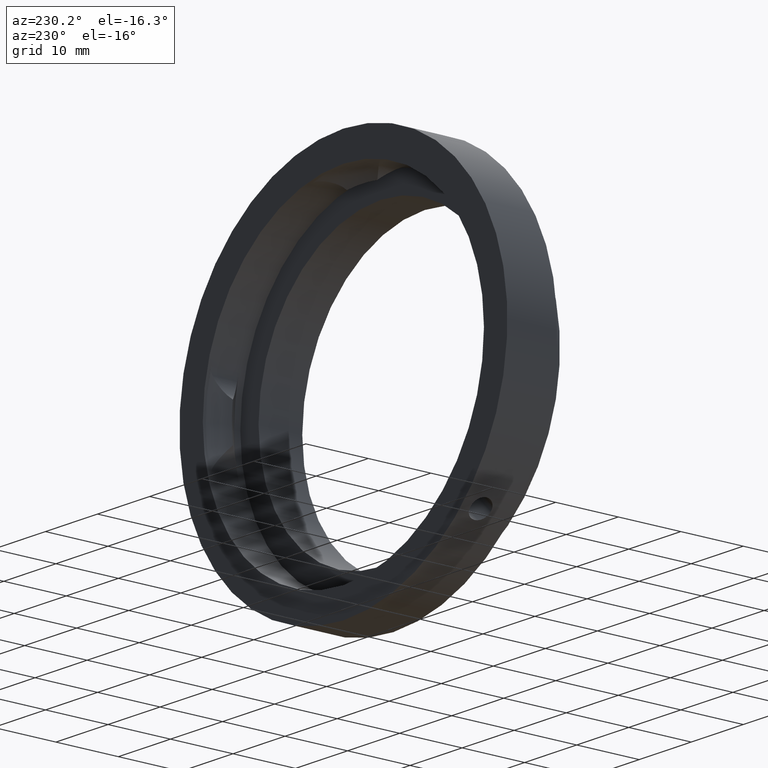
[diagram: clean part render]
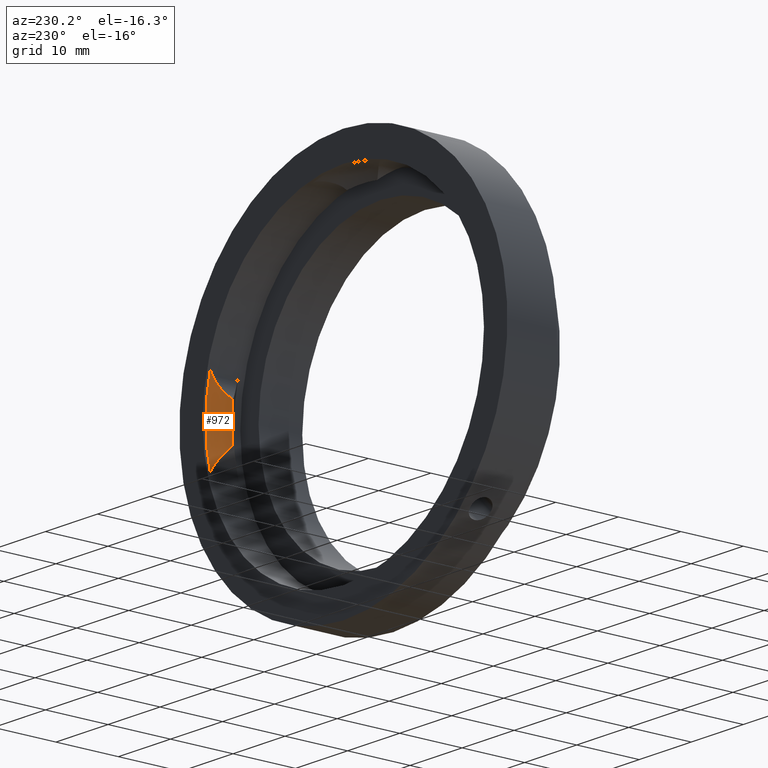
[diagram: same view with one face highlighted and labeled with its STEP entity id]
A machine part, auxiliary view. The second image highlights one B-rep face of the part: STEP entity #972.
In plain terms, the highlighted toroidal blend (fillet) surface has major radius 23.1376 mm and minor (blend) radius 4 mm.
Its self-contained STEP definition (entity closure, byte-faithful):
#44 = CARTESIAN_POINT ( 'NONE',  ( 26.07811685609203400, 3.496721311475398800, -6.995128393389825000 ) ) ;
#72 = DIRECTION ( 'NONE',  ( -0.0000000000000000000, 1.000000000000000000, -0.0000000000000000000 ) ) ;
#86 = CARTESIAN_POINT ( 'NONE',  ( 25.67428312446258300, 1.712306965547122400, 3.942588917903888700 ) ) ;
#91 = CARTESIAN_POINT ( 'NONE',  ( 26.13019098067392000, 3.482070185147443400, -6.783403477527127900 ) ) ;
#154 = CARTESIAN_POINT ( 'NONE',  ( 24.82768068771672200, 0.9967213114754001100, -2.930234063821264700 ) ) ;
#165 = DIRECTION ( 'NONE',  ( 0.0000000000000000000, 0.0000000000000000000, 1.000000000000000000 ) ) ;
#192 = AXIS2_PLACEMENT_3D ( 'NONE', #197, #493, #851 ) ;
#195 = ORIENTED_EDGE ( 'NONE', *, *, #595, .T. ) ;
#197 = CARTESIAN_POINT ( 'NONE',  ( 0.0000000000000000000, 0.9967213114754001100, 0.0000000000000000000 ) ) ;
#215 = TOROIDAL_SURFACE ( 'NONE', #744, 23.13755391998808300, 3.999999999999998200 ) ;
#224 = VERTEX_POINT ( 'NONE', #44 ) ;
#248 = CARTESIAN_POINT ( 'NONE',  ( 25.76272030198456200, 1.830174454562538200, 4.103152441285359900 ) ) ;
#252 = CARTESIAN_POINT ( 'NONE',  ( 26.20493346727846200, 2.926505991418855100, 5.624942459428278400 ) ) ;
#282 = CARTESIAN_POINT ( 'NONE',  ( 0.0000000000000000000, 4.536678175484936100, 0.0000000000000000000 ) ) ;
#283 = CARTESIAN_POINT ( 'NONE',  ( 26.12462800761268900, 2.557957266638823100, -5.096502573787323500 ) ) ;
#341 = CARTESIAN_POINT ( 'NONE',  ( 26.17205975867806300, 3.436686498698581000, 6.574057318472578800 ) ) ;
#349 = CARTESIAN_POINT ( 'NONE',  ( 26.21874977968131800, 3.156299845701443700, 5.990716938451496900 ) ) ;
#354 = CARTESIAN_POINT ( 'NONE',  ( 25.12966142752711800, 1.170571314832310700, 3.190776124182592700 ) ) ;
#355 = CIRCLE ( 'NONE', #1111, 27.00000000000000000 ) ;
#373 = CARTESIAN_POINT ( 'NONE',  ( 26.10621699466534200, 3.496721311475389400, -6.890369959208765500 ) ) ;
#378 = CARTESIAN_POINT ( 'NONE',  ( 25.92475968494376600, 2.066462786193639500, -4.422850623913392500 ) ) ;
#446 = DIRECTION ( 'NONE',  ( -0.0000000000000000000, 1.000000000000000000, -0.0000000000000000000 ) ) ;
#452 = CARTESIAN_POINT ( 'NONE',  ( 25.37436842029221000, 1.375073684623798800, 3.478457372669125000 ) ) ;
#463 = FACE_OUTER_BOUND ( 'NONE', #494, .T. ) ;
#466 = CARTESIAN_POINT ( 'NONE',  ( 26.21373644101785400, 3.264208029080463800, -6.176461608255668700 ) ) ;
#471 = CARTESIAN_POINT ( 'NONE',  ( 26.16814135222519900, 3.430441859112263200, -6.576324070051621000 ) ) ;
#476 = CARTESIAN_POINT ( 'NONE',  ( 26.20477490976896500, 2.925047112546332400, -5.622721401730362200 ) ) ;
#491 = EDGE_CURVE ( 'NONE', #853, #224, #355, .T. ) ;
#493 = DIRECTION ( 'NONE',  ( -0.0000000000000000000, 1.000000000000000000, -0.0000000000000000000 ) ) ;
#494 = EDGE_LOOP ( 'NONE', ( #1126, #683, #1191, #195 ) ) ;
#510 = VERTEX_POINT ( 'NONE', #154 ) ;
#534 = CARTESIAN_POINT ( 'NONE',  ( 25.91415837076242600, 2.068562115853157300, 4.427170220825062500 ) ) ;
#554 = CARTESIAN_POINT ( 'NONE',  ( 25.37388618771580100, 1.374915900929154700, -3.478206114856537700 ) ) ;
#595 = EDGE_CURVE ( 'NONE', #224, #510, #914, .T. ) ;
#641 = CARTESIAN_POINT ( 'NONE',  ( 26.13474890580262400, 3.496721311475387700, 6.784001859737053100 ) ) ;
#683 = ORIENTED_EDGE ( 'NONE', *, *, #1207, .T. ) ;
#696 = VERTEX_POINT ( 'NONE', #763 ) ;
#729 = CARTESIAN_POINT ( 'NONE',  ( 26.12474405187089800, 2.558251228571915900, 5.096898461977835900 ) ) ;
#736 = CARTESIAN_POINT ( 'NONE',  ( 24.82768068771672200, 0.9967213114754001100, -2.930234063821264700 ) ) ;
#744 = AXIS2_PLACEMENT_3D ( 'NONE', #282, #446, #1099 ) ;
#750 = CARTESIAN_POINT ( 'NONE',  ( 26.18265215941476500, 3.393367494006795000, -6.473812897068053300 ) ) ;
#763 = CARTESIAN_POINT ( 'NONE',  ( 24.82768068771672200, 0.9967213114754001100, 2.930234063821264300 ) ) ;
#841 = CARTESIAN_POINT ( 'NONE',  ( 26.18540187044179000, 2.802841813374080000, -5.444379283236862000 ) ) ;
#851 = DIRECTION ( 'NONE',  ( 0.0000000000000000000, 0.0000000000000000000, 1.000000000000000000 ) ) ;
#853 = VERTEX_POINT ( 'NONE', #987 ) ;
#901 = CARTESIAN_POINT ( 'NONE',  ( 25.97789981197563200, 2.189878321712846800, 4.591671003983925000 ) ) ;
#906 = CARTESIAN_POINT ( 'NONE',  ( 24.82768068771672200, 0.9967213114754001100, 2.930234063821264300 ) ) ;
#914 = B_SPLINE_CURVE_WITH_KNOTS ( 'NONE', 3,
 ( #1032, #373, #91, #471, #750, #466, #923, #476, #841, #283, #935, #378, #1112, #554, #1210, #736 ),
 .UNSPECIFIED., .F., .F.,
 ( 4, 2, 2, 2, 2, 2, 2, 4 ),
 ( 0.02967571168659645000, 0.03000270732061689100, 0.03032970295463733100, 0.03098369422267821200, 0.03163768549071908900, 0.03229167675875997000, 0.03359965929484173800, 0.03490764183092350000 ),
 .UNSPECIFIED. ) ;
#923 = CARTESIAN_POINT ( 'NONE',  ( 26.21878552896439600, 3.155726506840640200, -5.989704100088352400 ) ) ;
#935 = CARTESIAN_POINT ( 'NONE',  ( 26.08312791995816200, 2.434475195813561800, -4.926267649629407300 ) ) ;
#972 = ADVANCED_FACE ( 'NONE', ( #463 ), #215, .F. ) ;
#987 = CARTESIAN_POINT ( 'NONE',  ( 26.07811685609203400, 3.496721311475398800, 6.995128393389825000 ) ) ;
#992 = CARTESIAN_POINT ( 'NONE',  ( 26.21349665395741000, 3.265890396028751300, 6.179825307003394400 ) ) ;
#1001 = CARTESIAN_POINT ( 'NONE',  ( 26.07811685609203400, 3.496721311475398800, 6.995128393389825000 ) ) ;
#1032 = CARTESIAN_POINT ( 'NONE',  ( 26.07811685609203400, 3.496721311475398800, -6.995128393389825000 ) ) ;
#1061 = EDGE_CURVE ( 'NONE', #696, #510, #1118, .T. ) ;
#1099 = DIRECTION ( 'NONE',  ( 0.0000000000000000000, 0.0000000000000000000, 1.000000000000000000 ) ) ;
#1111 = AXIS2_PLACEMENT_3D ( 'NONE', #1195, #72, #165 ) ;
#1112 = CARTESIAN_POINT ( 'NONE',  ( 25.77156020181130500, 1.821306898424041500, -4.092638508915847200 ) ) ;
#1118 = CIRCLE ( 'NONE', #192, 25.00000000000000700 ) ;
#1126 = ORIENTED_EDGE ( 'NONE', *, *, #1061, .F. ) ;
#1181 = CARTESIAN_POINT ( 'NONE',  ( 26.18564542048928700, 2.803997842111119800, 5.446043343028364300 ) ) ;
#1190 = B_SPLINE_CURVE_WITH_KNOTS ( 'NONE', 3,
 ( #906, #354, #452, #86, #248, #534, #901, #1196, #729, #1181, #252, #349, #992, #341, #641, #1001 ),
 .UNSPECIFIED., .F., .F.,
 ( 4, 2, 2, 2, 2, 2, 2, 4 ),
 ( 0.01898210336972776200, 0.02027112380169597900, 0.02091563401768008500, 0.02156014423366419500, 0.02220465444964830200, 0.02284916466563240800, 0.02349367488161651500, 0.02413818509760062200 ),
 .UNSPECIFIED. ) ;
#1191 = ORIENTED_EDGE ( 'NONE', *, *, #491, .T. ) ;
#1195 = CARTESIAN_POINT ( 'NONE',  ( 0.0000000000000000000, 3.496721311475398800, 0.0000000000000000000 ) ) ;
#1196 = CARTESIAN_POINT ( 'NONE',  ( 26.08318890901430400, 2.434687447786466000, 4.926562052838751700 ) ) ;
#1207 = EDGE_CURVE ( 'NONE', #696, #853, #1190, .T. ) ;
#1210 = CARTESIAN_POINT ( 'NONE',  ( 25.13060839574636400, 1.171116483468207700, -3.191593146655803600 ) ) ;